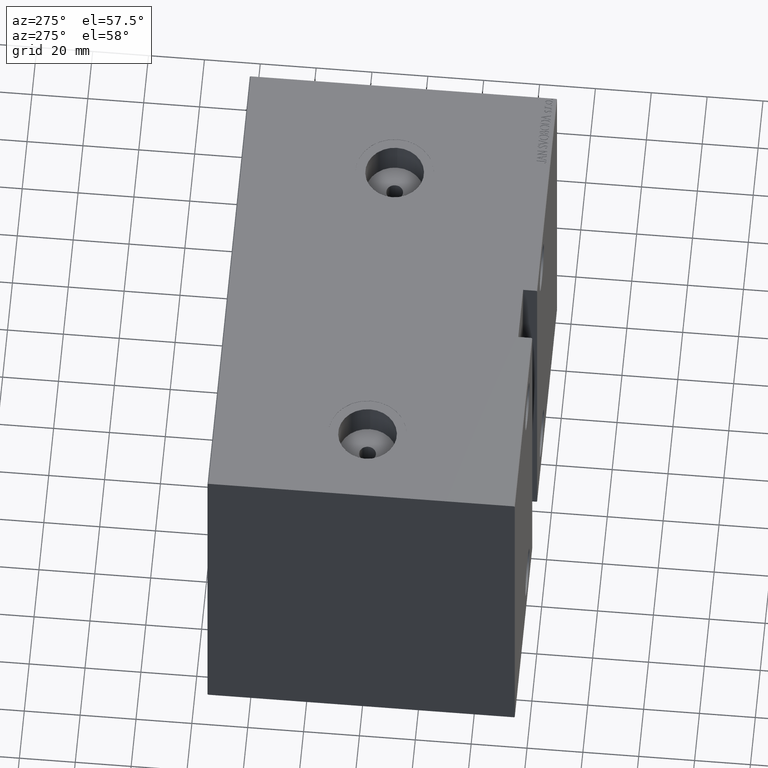
[diagram: clean part render]
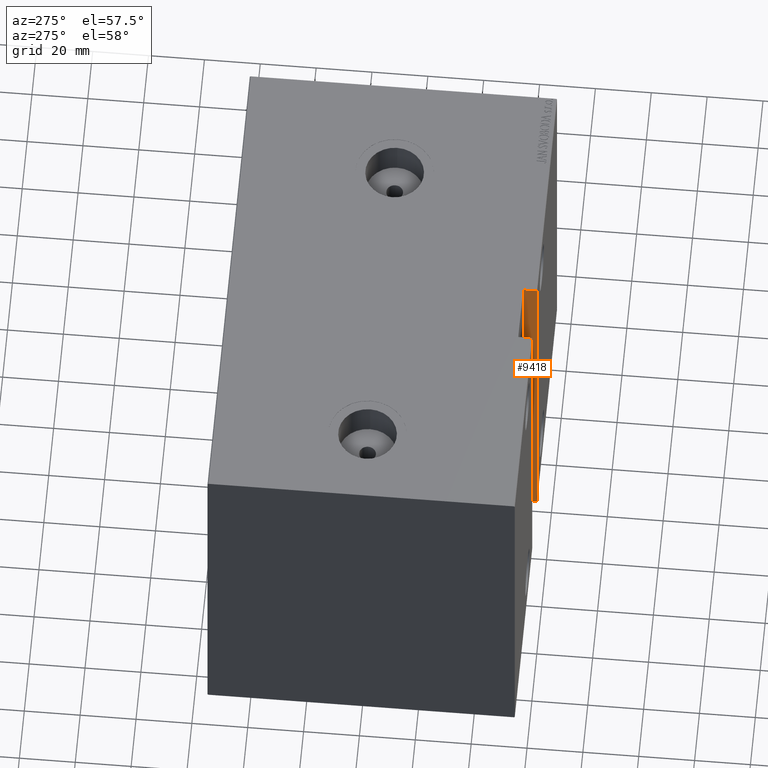
[diagram: same view with one face highlighted and labeled with its STEP entity id]
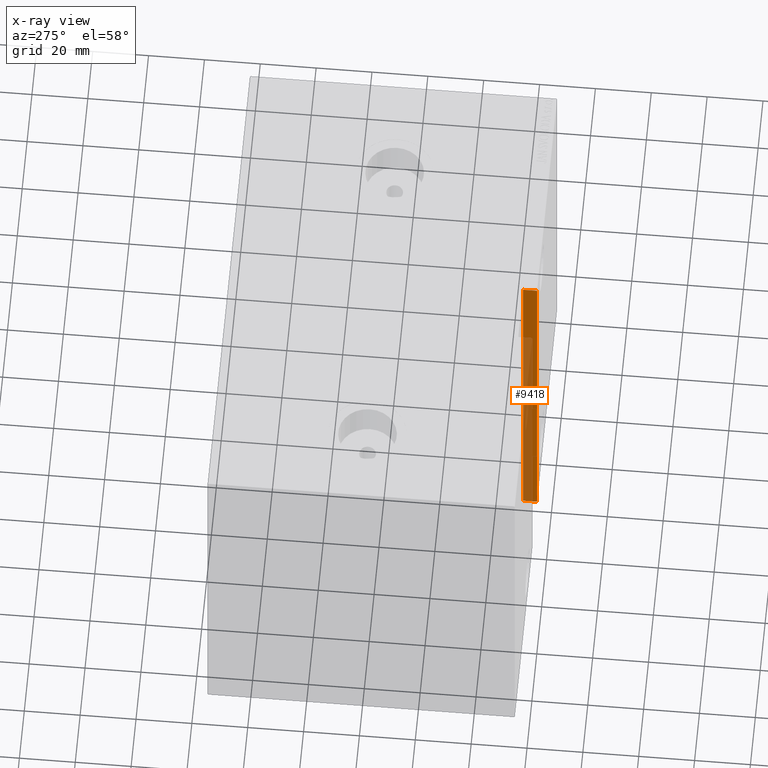
[diagram: x-ray of the same camera — body ghosted, the highlighted face saturated]
A machine part, auxiliary view. The second image highlights one B-rep face of the part: STEP entity #9418.
The next image is the same camera in x-ray: the body ghosted, the highlighted face saturated — about 53% of this face is hidden behind the body in this view.
In plain terms, the highlighted planar face has unit normal (1, 0, -0).
Its self-contained STEP definition (entity closure, byte-faithful):
#363 = CARTESIAN_POINT ( 'NONE',  ( 81.49999999999998579, 50.00000000000001421, -70.00000000000008527 ) ) ;
#1315 = VERTEX_POINT ( 'NONE', #38460 ) ;
#2966 = DIRECTION ( 'NONE',  ( 0.000000000000000000, -9.912705577010316921E-17, 1.000000000000000000 ) ) ;
#5128 = CARTESIAN_POINT ( 'NONE',  ( 81.49999999999998579, 50.00000000000000000, 70.00000000000001421 ) ) ;
#6658 = LINE ( 'NONE', #31090, #26899 ) ;
#6733 = ORIENTED_EDGE ( 'NONE', *, *, #29055, .T. ) ;
#8023 = VECTOR ( 'NONE', #8327, 1000.000000000000000 ) ;
#8289 = VERTEX_POINT ( 'NONE', #5128 ) ;
#8327 = DIRECTION ( 'NONE',  ( 0.000000000000000000, -9.912705577010316921E-17, 1.000000000000000000 ) ) ;
#8455 = ORIENTED_EDGE ( 'NONE', *, *, #27149, .F. ) ;
#9347 = VERTEX_POINT ( 'NONE', #363 ) ;
#9418 = ADVANCED_FACE ( 'NONE', ( #10933 ), #17003, .F. ) ;
#10277 = DIRECTION ( 'NONE',  ( 0.000000000000000000, 0.000000000000000000, 1.000000000000000000 ) ) ;
#10933 = FACE_OUTER_BOUND ( 'NONE', #32495, .T. ) ;
#11589 = VECTOR ( 'NONE', #16147, 1000.000000000000000 ) ;
#12862 = LINE ( 'NONE', #40669, #43196 ) ;
#15731 = LINE ( 'NONE', #36358, #11589 ) ;
#15776 = EDGE_CURVE ( 'NONE', #9347, #33573, #15731, .T. ) ;
#16147 = DIRECTION ( 'NONE',  ( -0.000000000000000000, 1.000000000000000000, 1.261617073437677752E-16 ) ) ;
#16547 = EDGE_CURVE ( 'NONE', #31217, #1315, #21786, .T. ) ;
#16679 = LINE ( 'NONE', #33286, #38903 ) ;
#17003 = PLANE ( 'NONE',  #32852 ) ;
#18228 = DIRECTION ( 'NONE',  ( -0.000000000000000000, -0.7071067811865312525, 0.7071067811865638930 ) ) ;
#21642 = CARTESIAN_POINT ( 'NONE',  ( 81.49999999999998579, 54.69999999999997442, 70.00000000000001421 ) ) ;
#21786 = LINE ( 'NONE', #24915, #8023 ) ;
#24604 = CARTESIAN_POINT ( 'NONE',  ( 81.49999999999998579, 50.00000000000001421, -70.00000000000008527 ) ) ;
#24915 = CARTESIAN_POINT ( 'NONE',  ( 81.49999999999998579, 55.00000000000001421, -70.00000000000008527 ) ) ;
#25166 = CARTESIAN_POINT ( 'NONE',  ( 81.49999999999998579, 54.69999999999997442, 70.00000000000000000 ) ) ;
#26899 = VECTOR ( 'NONE', #28160, 1000.000000000000000 ) ;
#27149 = EDGE_CURVE ( 'NONE', #9347, #8289, #12862, .T. ) ;
#28160 = DIRECTION ( 'NONE',  ( -0.000000000000000000, 1.000000000000000000, 1.261617073437677752E-16 ) ) ;
#29055 = EDGE_CURVE ( 'NONE', #33573, #31217, #16679, .T. ) ;
#29145 = VECTOR ( 'NONE', #18228, 1000.000000000000114 ) ;
#31090 = CARTESIAN_POINT ( 'NONE',  ( 81.49999999999998579, 50.00000000000000000, 70.00000000000001421 ) ) ;
#31217 = VERTEX_POINT ( 'NONE', #43558 ) ;
#32407 = ORIENTED_EDGE ( 'NONE', *, *, #15776, .T. ) ;
#32495 = EDGE_LOOP ( 'NONE', ( #41266, #38693, #40287, #8455, #32407, #6733 ) ) ;
#32852 = AXIS2_PLACEMENT_3D ( 'NONE', #24604, #40996, #10277 ) ;
#33286 = CARTESIAN_POINT ( 'NONE',  ( 81.49999999999998579, 55.00000000000002132, -69.70000000000000284 ) ) ;
#33573 = VERTEX_POINT ( 'NONE', #39088 ) ;
#35431 = EDGE_CURVE ( 'NONE', #8289, #37902, #6658, .T. ) ;
#36358 = CARTESIAN_POINT ( 'NONE',  ( 81.49999999999998579, 50.00000000000001421, -70.00000000000008527 ) ) ;
#37902 = VERTEX_POINT ( 'NONE', #21642 ) ;
#38416 = LINE ( 'NONE', #25166, #29145 ) ;
#38460 = CARTESIAN_POINT ( 'NONE',  ( 81.49999999999998579, 55.00000000000000000, 69.69999999999996021 ) ) ;
#38693 = ORIENTED_EDGE ( 'NONE', *, *, #39029, .T. ) ;
#38903 = VECTOR ( 'NONE', #40239, 1000.000000000000114 ) ;
#39029 = EDGE_CURVE ( 'NONE', #1315, #37902, #38416, .T. ) ;
#39088 = CARTESIAN_POINT ( 'NONE',  ( 81.49999999999998579, 54.69999999999999574, -70.00000000000008527 ) ) ;
#40239 = DIRECTION ( 'NONE',  ( -0.000000000000000000, 0.7071067811865474617, 0.7071067811865474617 ) ) ;
#40287 = ORIENTED_EDGE ( 'NONE', *, *, #35431, .F. ) ;
#40669 = CARTESIAN_POINT ( 'NONE',  ( 81.49999999999998579, 50.00000000000001421, -70.00000000000008527 ) ) ;
#40996 = DIRECTION ( 'NONE',  ( -1.000000000000000000, -0.000000000000000000, 0.000000000000000000 ) ) ;
#41266 = ORIENTED_EDGE ( 'NONE', *, *, #16547, .T. ) ;
#43196 = VECTOR ( 'NONE', #2966, 1000.000000000000000 ) ;
#43558 = CARTESIAN_POINT ( 'NONE',  ( 81.49999999999998579, 55.00000000000001421, -69.70000000000000284 ) ) ;